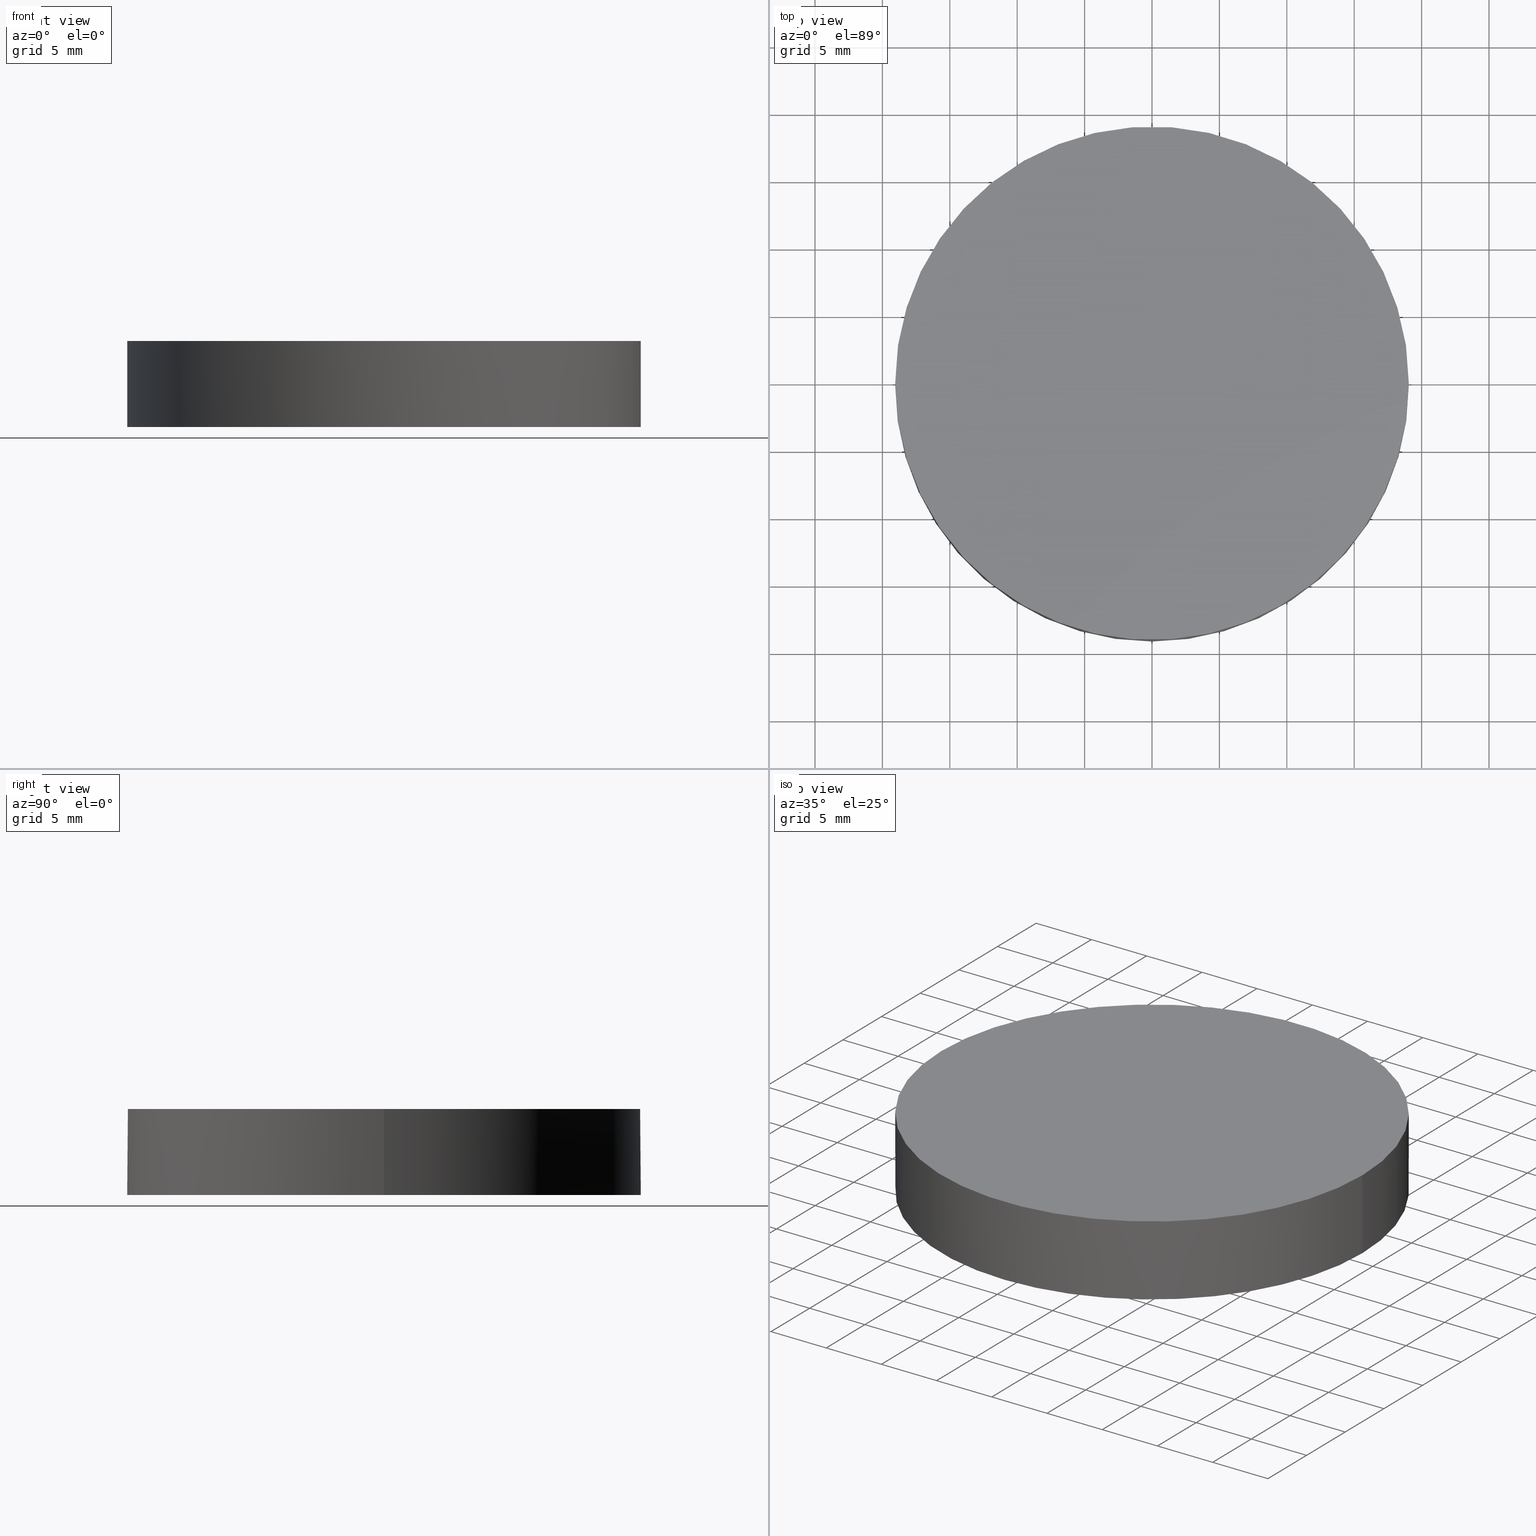
[diagram: canonical four-view strip — front | top / right | iso, engineering-drawing reading convention]
A machine part, canonical four-view strip (front | top / right | iso — engineering-drawing reading convention). The complete STEP part file that produces these views, byte-faithful:
ISO-10303-21;
HEADER;
FILE_DESCRIPTION (( 'STEP AP203' ),
    '1' );
FILE_NAME ('112-1411E UVFS pl-cv 38.1 F-100.STEP',
    '2019-01-17T08:30:07',
    ( '' ),
    ( '' ),
    'SwSTEP 2.0',
    'SolidWorks 2017',
    '' );
FILE_SCHEMA (( 'CONFIG_CONTROL_DESIGN' ));
ENDSEC;

DATA;
#1 = CALENDAR_DATE ( 2019, 17, 1 ) ;
#2 = ORIENTED_EDGE ( 'NONE', *, *, #103, .T. ) ;
#3 = CARTESIAN_POINT ( 'NONE',  ( -4.811603628528664400E-015, -8.881784197001250400E-016, 2.399999999999999500 ) ) ;
#4 = DIRECTION ( 'NONE',  ( 0.0000000000000000000, 1.000000000000000000, 2.914889268602070600E-016 ) ) ;
#5 = CC_DESIGN_DATE_AND_TIME_ASSIGNMENT ( #128, #79, ( #158 ) ) ;
#6 = FACE_OUTER_BOUND ( 'NONE', #187, .T. ) ;
#7 = CARTESIAN_POINT ( 'NONE',  ( 6.819685373449118500, 6.810067751749127900, 1.439395188424492000 ) ) ;
#8 = AXIS2_PLACEMENT_3D ( 'NONE', #195, #93, #60 ) ;
#9 = CARTESIAN_POINT ( 'NONE',  ( -4.662936703425659800E-015, -8.881784197001250400E-016, -3.977333338426360900 ) ) ;
#10 = CARTESIAN_POINT ( 'NONE',  ( 13.49369626036719300, -6.810067751749140400, 0.03736549040280141100 ) ) ;
#11 = DIRECTION ( 'NONE',  ( -2.331176954593499900E-017, -1.086877198725570000E-033, 1.000000000000000000 ) ) ;
#12 = CC_DESIGN_PERSON_AND_ORGANIZATION_ASSIGNMENT ( #67, #177, ( #158 ) ) ;
#13 = COORDINATED_UNIVERSAL_TIME_OFFSET ( 2, 0, .AHEAD. ) ;
#14 = EDGE_LOOP ( 'NONE', ( #57, #190, #159 ) ) ;
#15 = CC_DESIGN_PERSON_AND_ORGANIZATION_ASSIGNMENT ( #227, #82, ( #71 ) ) ;
#16 = AXIS2_PLACEMENT_3D ( 'NONE', #105, #144, #52 ) ;
#17 = APPROVAL ( #136, 'UNSPECIFIED' ) ;
#18 = ADVANCED_FACE ( 'NONE', ( #145 ), #50, .T. ) ;
#19 = CC_DESIGN_APPROVAL ( #98, ( #158 ) ) ;
#20 = DATE_AND_TIME ( #118, #169 ) ;
#21 = PLANE ( 'NONE',  #232 ) ;
#22 = CARTESIAN_POINT ( 'NONE',  ( 13.49369626036719300, 6.810067751749127900, 0.03736549040280401400 ) ) ;
#23 =( BOUNDED_SURFACE ( )  B_SPLINE_SURFACE ( 3, 3, ( 
 ( #91, #132, #189, #61 ),
 ( #72, #7, #22, #151 ),
 ( #167, #208, #10, #194 ),
 ( #46, #77, #62, #228 ) ),
 .UNSPECIFIED., .F., .F., .F. ) 
 B_SPLINE_SURFACE_WITH_KNOTS ( ( 4, 4 ),
 ( 4, 4 ),
 ( 0.0000000000000000000, 1.000000000000000000 ),
 ( 0.0000000000000000000, 1.000000000000000000 ),
 .UNSPECIFIED. ) 
 GEOMETRIC_REPRESENTATION_ITEM ( )  RATIONAL_B_SPLINE_SURFACE ( (
 ( 1.000000000000000000, 0.9857594127828645000, 0.9857594127828645000, 1.000000000000000000),
 ( 0.9429815934316968500, 0.9295529818062793200, 0.9295529818062793200, 0.9429815934316968500),
 ( 0.9429815934316968500, 0.9295529818062793200, 0.9295529818062793200, 0.9429815934316968500),
 ( 1.000000000000000000, 0.9857594127828645000, 0.9857594127828645000, 1.000000000000000000) ) ) 
 REPRESENTATION_ITEM ( '' )  SURFACE ( )  );
#24 = APPROVAL_PERSON_ORGANIZATION ( #155, #17, #214 ) ;
#25 = PRODUCT_RELATED_PRODUCT_CATEGORY ( 'detail', '', ( #96 ) ) ;
#26 = APPLICATION_PROTOCOL_DEFINITION ( 'international standard', 'config_control_design', 1994, #157 ) ;
#27 =( NAMED_UNIT ( * ) PLANE_ANGLE_UNIT ( ) SI_UNIT ( $, .RADIAN. ) );
#28 = VERTEX_POINT ( 'NONE', #224 ) ;
#29 = PERSON_AND_ORGANIZATION ( #123, #204 ) ;
#30 = CC_DESIGN_APPROVAL ( #17, ( #36 ) ) ;
#31 = ORIENTED_EDGE ( 'NONE', *, *, #119, .T. ) ;
#32 = EDGE_CURVE ( 'NONE', #137, #28, #182, .T. ) ;
#33 = AXIS2_PLACEMENT_3D ( 'NONE', #3, #222, #122 ) ;
#34 = APPROVAL_PERSON_ORGANIZATION ( #29, #111, #198 ) ;
#35 = DATE_AND_TIME ( #1, #125 ) ;
#36 = SECURITY_CLASSIFICATION ( '', '', #179 ) ;
#37 = CARTESIAN_POINT ( 'NONE',  ( -3.469446951953614200E-015, 19.26530561976662900, -4.071969505075364800 ) ) ;
#38 = CARTESIAN_POINT ( 'NONE',  ( -17.51919799288436900, -19.26530561976664700, -7.752280533589186900 ) ) ;
#39 = ORIENTED_EDGE ( 'NONE', *, *, #55, .T. ) ;
#40 = DIRECTION ( 'NONE',  ( -2.331176954593499900E-017, -1.086877198725570000E-033, 1.000000000000000000 ) ) ;
#41 = DIRECTION ( 'NONE',  ( 1.000000000000000000, 0.0000000000000000000, 4.553079989440438700E-017 ) ) ;
#42 = VERTEX_POINT ( 'NONE', #56 ) ;
#43 = DIRECTION ( 'NONE',  ( -2.331176954593499900E-017, -1.086877198725570000E-033, 1.000000000000000000 ) ) ;
#44 = DIRECTION ( 'NONE',  ( 1.000000000000000000, 0.0000000000000000000, 4.553079989440438700E-017 ) ) ;
#45 = ADVANCED_BREP_SHAPE_REPRESENTATION ( '112-1411E UVFS pl-cv 38.1 F-100', ( #171, #218 ), #153 ) ;
#46 = CARTESIAN_POINT ( 'NONE',  ( 6.322962827274209500E-015, -19.26530561976665000, -4.071969505075371900 ) ) ;
#47 =( LENGTH_UNIT ( ) NAMED_UNIT ( * ) SI_UNIT ( .MILLI., .METRE. ) );
#48 = APPROVAL_STATUS ( 'not_yet_approved' ) ;
#49 = MECHANICAL_CONTEXT ( 'NONE', #157, 'mechanical' ) ;
#50 = CYLINDRICAL_SURFACE ( 'NONE', #16, 19.05000000000000100 ) ;
#51 = AXIS2_PLACEMENT_3D ( 'NONE', #188, #148, #44 ) ;
#52 = DIRECTION ( 'NONE',  ( 1.000000000000000000, 0.0000000000000000000, 4.553079989440438700E-017 ) ) ;
#53 = APPROVAL_PERSON_ORGANIZATION ( #97, #98, #115 ) ;
#54 = CARTESIAN_POINT ( 'NONE',  ( 6.352151363294733000E-015, -19.05000000000000400, -3.977333338426361800 ) ) ;
#55 = EDGE_CURVE ( 'NONE', #180, #127, #140, .T. ) ;
#56 = CARTESIAN_POINT ( 'NONE',  ( 6.352151363294729900E-015, 19.04999999999999000, -3.977333338426361800 ) ) ;
#57 = ORIENTED_EDGE ( 'NONE', *, *, #89, .F. ) ;
#58 = COORDINATED_UNIVERSAL_TIME_OFFSET ( 2, 0, .AHEAD. ) ;
#59 = CARTESIAN_POINT ( 'NONE',  ( -4.662936703425659800E-015, -8.881784197001250400E-016, -3.977333338426360900 ) ) ;
#60 = DIRECTION ( 'NONE',  ( 1.000000000000000000, 0.0000000000000000000, 2.276539994720219300E-017 ) ) ;
#61 = CARTESIAN_POINT ( 'NONE',  ( 17.51919799288433300, 19.26530561976663600, -7.752280533589177100 ) ) ;
#62 = CARTESIAN_POINT ( 'NONE',  ( 11.97749650156262800, -19.26530561976665700, -5.316462154021712300 ) ) ;
#63 = PERSON_AND_ORGANIZATION_ROLE ( 'creator' ) ;
#64 = ORIENTED_EDGE ( 'NONE', *, *, #235, .T. ) ;
#65 = AXIS2_PLACEMENT_3D ( 'NONE', #210, #95, #134 ) ;
#66 = EDGE_CURVE ( 'NONE', #28, #127, #230, .T. ) ;
#67 = PERSON_AND_ORGANIZATION ( #123, #204 ) ;
#68 = DIRECTION ( 'NONE',  ( -2.331176954593499900E-017, -1.086877198725570000E-033, 1.000000000000000000 ) ) ;
#69 = CARTESIAN_POINT ( 'NONE',  ( 0.0000000000000000000, 6.810067751749127000, 1.439395188424495800 ) ) ;
#70 = CARTESIAN_POINT ( 'NONE',  ( 0.0000000000000000000, 0.0000000000000000000, 0.0000000000000000000 ) ) ;
#71 = PRODUCT_DEFINITION_FORMATION_WITH_SPECIFIED_SOURCE ( 'ANY', '', #96, .NOT_KNOWN. ) ;
#72 = CARTESIAN_POINT ( 'NONE',  ( 8.022827398871876000E-015, 6.810067751749127000, 1.439395188424494000 ) ) ;
#73 = UNCERTAINTY_MEASURE_WITH_UNIT (LENGTH_MEASURE( 1.000000000000000100E-005 ), #47, 'distance_accuracy_value', 'NONE');
#74 = ORIENTED_EDGE ( 'NONE', *, *, #32, .T. ) ;
#75 = CALENDAR_DATE ( 2019, 17, 1 ) ;
#76 = CARTESIAN_POINT ( 'NONE',  ( 0.0000000000000000000, -19.26530561976665000, -4.071969505075371900 ) ) ;
#77 = CARTESIAN_POINT ( 'NONE',  ( 6.053401242042030900, -19.26530561976665700, -4.071969505075373700 ) ) ;
#78 = CYLINDRICAL_SURFACE ( 'NONE', #51, 19.05000000000000100 ) ;
#79 = DATE_TIME_ROLE ( 'creation_date' ) ;
#80 = VERTEX_POINT ( 'NONE', #54 ) ;
#81 = PERSON_AND_ORGANIZATION ( #123, #204 ) ;
#82 = PERSON_AND_ORGANIZATION_ROLE ( 'design_supplier' ) ;
#83 = SHAPE_DEFINITION_REPRESENTATION ( #92, #45 ) ;
#84 = ORIENTED_EDGE ( 'NONE', *, *, #66, .T. ) ;
#85 = CARTESIAN_POINT ( 'NONE',  ( -17.51919799288436500, 19.26530561976663200, -7.752280533589179800 ) ) ;
#86 = CARTESIAN_POINT ( 'NONE',  ( -11.97749650156265000, -19.26530561976665400, -5.316462154021713200 ) ) ;
#87 = DIRECTION ( 'NONE',  ( 1.000000000000000000, 9.412420553253650200E-032, -3.084289765114799800E-016 ) ) ;
#88 = CARTESIAN_POINT ( 'NONE',  ( -11.97749650156264800, 19.26530561976663900, -5.316462154021707000 ) ) ;
#89 = EDGE_CURVE ( 'NONE', #42, #80, #161, .T. ) ;
#90 = VECTOR ( 'NONE', #68, 1000.000000000000000 ) ;
#91 = CARTESIAN_POINT ( 'NONE',  ( 6.322962827274204700E-015, 19.26530561976663600, -4.071969505075371900 ) ) ;
#92 = PRODUCT_DEFINITION_SHAPE ( 'NONE', 'NONE',  #158 ) ;
#93 = DIRECTION ( 'NONE',  ( 2.331176954593499900E-017, 1.086877198725570000E-033, -1.000000000000000000 ) ) ;
#94 = DIRECTION ( 'NONE',  ( 0.0000000000000000000, 0.0000000000000000000, 1.000000000000000000 ) ) ;
#95 = DIRECTION ( 'NONE',  ( -2.331176954593499900E-017, -1.086877198725570000E-033, 1.000000000000000000 ) ) ;
#96 = PRODUCT ( '112-1411E UVFS pl-cv 38.1 F-100', '112-1411E UVFS pl-cv 38.1 F-100', '', ( #49 ) ) ;
#97 = PERSON_AND_ORGANIZATION ( #123, #204 ) ;
#98 = APPROVAL ( #48, 'UNSPECIFIED' ) ;
#99 = CC_DESIGN_PERSON_AND_ORGANIZATION_ASSIGNMENT ( #121, #116, ( #36 ) ) ;
#100 = ORIENTED_EDGE ( 'NONE', *, *, #66, .F. ) ;
#101 = ADVANCED_FACE ( 'NONE', ( #6 ), #133, .F. ) ;
#102 = CARTESIAN_POINT ( 'NONE',  ( -6.819685373449125600, -6.810067751749144800, 1.439395188424491100 ) ) ;
#103 = EDGE_CURVE ( 'NONE', #127, #28, #215, .T. ) ;
#104 = ADVANCED_FACE ( 'NONE', ( #225 ), #78, .T. ) ;
#105 = CARTESIAN_POINT ( 'NONE',  ( -4.662936703425659800E-015, -8.881784197001250400E-016, -3.977333338426360500 ) ) ;
#106 = CARTESIAN_POINT ( 'NONE',  ( -19.73690715838445100, -6.810067751749142100, -2.706796727053509200 ) ) ;
#107 = ORIENTED_EDGE ( 'NONE', *, *, #211, .T. ) ;
#108 = ADVANCED_FACE ( 'NONE', ( #117 ), #23, .F. ) ;
#109 = CLOSED_SHELL ( 'NONE', ( #101, #18, #108, #104, #165 ) ) ;
#110 = CALENDAR_DATE ( 2019, 17, 1 ) ;
#111 = APPROVAL ( #173, 'UNSPECIFIED' ) ;
#112 = ORIENTED_EDGE ( 'NONE', *, *, #219, .T. ) ;
#113 = DATE_AND_TIME ( #110, #191 ) ;
#114 = AXIS2_PLACEMENT_3D ( 'NONE', #142, #87, #4 ) ;
#115 = APPROVAL_ROLE ( '' ) ;
#116 = PERSON_AND_ORGANIZATION_ROLE ( 'classification_officer' ) ;
#117 = FACE_OUTER_BOUND ( 'NONE', #14, .T. ) ;
#118 = CALENDAR_DATE ( 2019, 17, 1 ) ;
#119 = EDGE_CURVE ( 'NONE', #42, #180, #135, .T. ) ;
#120 = CIRCLE ( 'NONE', #65, 19.05000000000000100 ) ;
#121 = PERSON_AND_ORGANIZATION ( #123, #204 ) ;
#122 = DIRECTION ( 'NONE',  ( 1.000000000000000000, 0.0000000000000000000, 2.276539994720219300E-017 ) ) ;
#123 = PERSON ( 'UNSPECIFIED', 'UNSPECIFIED', 'UNSPECIFIED', ('UNSPECIFIED'), ('UNSPECIFIED'), ('UNSPECIFIED') ) ;
#124 = CARTESIAN_POINT ( 'NONE',  ( 0.0000000000000000000, -6.810067751749143900, 1.439395188424490200 ) ) ;
#125 = LOCAL_TIME ( 10, 30, 7.000000000000000000, #58 ) ;
#126 = CARTESIAN_POINT ( 'NONE',  ( -6.819685373449126500, 6.810067751749126200, 1.439395188424497300 ) ) ;
#127 = VERTEX_POINT ( 'NONE', #130 ) ;
#128 = DATE_AND_TIME ( #75, #234 ) ;
#129 = CARTESIAN_POINT ( 'NONE',  ( -4.662936703425659800E-015, -8.881784197001250400E-016, -3.977333338426360900 ) ) ;
#130 = CARTESIAN_POINT ( 'NONE',  ( -19.05000000000000400, 1.444773732675583000E-015, 2.399999999999999000 ) ) ;
#131 = CC_DESIGN_PERSON_AND_ORGANIZATION_ASSIGNMENT ( #81, #63, ( #71 ) ) ;
#132 = CARTESIAN_POINT ( 'NONE',  ( 6.053401242042029100, 19.26530561976664300, -4.071969505075373700 ) ) ;
#133 =( BOUNDED_SURFACE ( )  B_SPLINE_SURFACE ( 3, 3, ( 
 ( #85, #88, #141, #37 ),
 ( #162, #205, #126, #69 ),
 ( #106, #206, #102, #124 ),
 ( #38, #86, #226, #76 ) ),
 .UNSPECIFIED., .F., .F., .F. ) 
 B_SPLINE_SURFACE_WITH_KNOTS ( ( 4, 4 ),
 ( 4, 4 ),
 ( 0.0000000000000000000, 1.000000000000000000 ),
 ( 0.0000000000000000000, 1.000000000000000000 ),
 .UNSPECIFIED. ) 
 GEOMETRIC_REPRESENTATION_ITEM ( )  RATIONAL_B_SPLINE_SURFACE ( (
 ( 1.000000000000000000, 0.9857594127828642700, 0.9857594127828642700, 1.000000000000000000),
 ( 0.9429815934316968500, 0.9295529818062791000, 0.9295529818062791000, 0.9429815934316968500),
 ( 0.9429815934316968500, 0.9295529818062791000, 0.9295529818062791000, 0.9429815934316968500),
 ( 1.000000000000000000, 0.9857594127828642700, 0.9857594127828642700, 1.000000000000000000) ) ) 
 REPRESENTATION_ITEM ( '' )  SURFACE ( )  );
#134 = DIRECTION ( 'NONE',  ( 1.000000000000000000, 0.0000000000000000000, 4.553079989440438700E-017 ) ) ;
#135 = CIRCLE ( 'NONE', #209, 19.05000000000000100 ) ;
#136 = APPROVAL_STATUS ( 'not_yet_approved' ) ;
#137 = VERTEX_POINT ( 'NONE', #172 ) ;
#138 = DIRECTION ( 'NONE',  ( 1.000000000000000000, 0.0000000000000000000, 0.0000000000000000000 ) ) ;
#139 = DATE_AND_TIME ( #196, #201 ) ;
#140 = LINE ( 'NONE', #143, #90 ) ;
#141 = CARTESIAN_POINT ( 'NONE',  ( -6.053401242042039800, 19.26530561976663600, -4.071969505075363900 ) ) ;
#142 = CARTESIAN_POINT ( 'NONE',  ( -7.105427357601000300E-015, -1.065814103640150000E-014, -47.60999999999999900 ) ) ;
#143 = CARTESIAN_POINT ( 'NONE',  ( -19.05000000000000400, 1.444773732675583000E-015, -3.977333338426360900 ) ) ;
#144 = DIRECTION ( 'NONE',  ( -2.331176954593499900E-017, -1.086877198725570000E-033, 1.000000000000000000 ) ) ;
#145 = FACE_OUTER_BOUND ( 'NONE', #233, .T. ) ;
#146 = DIRECTION ( 'NONE',  ( 1.000000000000000000, 0.0000000000000000000, 4.553079989440438700E-017 ) ) ;
#147 = AXIS2_PLACEMENT_3D ( 'NONE', #9, #11, #146 ) ;
#148 = DIRECTION ( 'NONE',  ( -2.331176954593499900E-017, -1.086877198725570000E-033, 1.000000000000000000 ) ) ;
#149 = CIRCLE ( 'NONE', #178, 19.05000000000000100 ) ;
#150 = PERSON_AND_ORGANIZATION ( #123, #204 ) ;
#151 = CARTESIAN_POINT ( 'NONE',  ( 19.73690715838441500, 6.810067751749127900, -2.706796727053494900 ) ) ;
#152 = CARTESIAN_POINT ( 'NONE',  ( 0.0000000000000000000, 39.06600000000000300, 2.399999999999999900 ) ) ;
#153 =( GEOMETRIC_REPRESENTATION_CONTEXT ( 3 ) GLOBAL_UNCERTAINTY_ASSIGNED_CONTEXT ( ( #73 ) ) GLOBAL_UNIT_ASSIGNED_CONTEXT ( ( #47, #27, #199 ) ) REPRESENTATION_CONTEXT ( 'NONE', 'WORKASPACE' ) );
#154 = ORIENTED_EDGE ( 'NONE', *, *, #32, .F. ) ;
#155 = PERSON_AND_ORGANIZATION ( #123, #204 ) ;
#156 = PERSON_AND_ORGANIZATION_ROLE ( 'design_owner' ) ;
#157 = APPLICATION_CONTEXT ( 'configuration controlled 3d designs of mechanical parts and assemblies' ) ;
#158 = PRODUCT_DEFINITION ( 'UNKNOWN', '', #71, #160 ) ;
#159 = ORIENTED_EDGE ( 'NONE', *, *, #211, .F. ) ;
#160 = DESIGN_CONTEXT ( 'detailed design', #176, 'design' ) ;
#161 = CIRCLE ( 'NONE', #114, 47.60999999999999200 ) ;
#162 = CARTESIAN_POINT ( 'NONE',  ( -19.73690715838445100, 6.810067751749127000, -2.706796727053502000 ) ) ;
#163 = EDGE_LOOP ( 'NONE', ( #100, #220 ) ) ;
#164 = DIRECTION ( 'NONE',  ( -2.331176954593499900E-017, -1.086877198725570000E-033, 1.000000000000000000 ) ) ;
#165 = ADVANCED_FACE ( 'NONE', ( #174 ), #21, .T. ) ;
#166 = DIRECTION ( 'NONE',  ( 0.0000000000000000000, 0.0000000000000000000, 1.000000000000000000 ) ) ;
#167 = CARTESIAN_POINT ( 'NONE',  ( 8.022827398871877600E-015, -6.810067751749141300, 1.439395188424491500 ) ) ;
#168 = ORIENTED_EDGE ( 'NONE', *, *, #219, .F. ) ;
#169 = LOCAL_TIME ( 10, 30, 7.000000000000000000, #221 ) ;
#170 = APPROVAL_DATE_TIME ( #35, #17 ) ;
#171 = MANIFOLD_SOLID_BREP ( 'Imported1', #109 ) ;
#172 = CARTESIAN_POINT ( 'NONE',  ( 19.04999999999999700, -8.881784197001250400E-016, -3.977333338426360500 ) ) ;
#173 = APPROVAL_STATUS ( 'not_yet_approved' ) ;
#174 = FACE_OUTER_BOUND ( 'NONE', #163, .T. ) ;
#175 = APPLICATION_PROTOCOL_DEFINITION ( 'international standard', 'config_control_design', 1994, #176 ) ;
#176 = APPLICATION_CONTEXT ( 'configuration controlled 3d designs of mechanical parts and assemblies' ) ;
#177 = PERSON_AND_ORGANIZATION_ROLE ( 'creator' ) ;
#178 = AXIS2_PLACEMENT_3D ( 'NONE', #129, #43, #212 ) ;
#179 = SECURITY_CLASSIFICATION_LEVEL ( 'unclassified' ) ;
#180 = VERTEX_POINT ( 'NONE', #192 ) ;
#181 = EDGE_LOOP ( 'NONE', ( #213, #112, #107, #74, #84 ) ) ;
#182 = LINE ( 'NONE', #185, #197 ) ;
#183 = APPROVAL_DATE_TIME ( #20, #111 ) ;
#184 = COORDINATED_UNIVERSAL_TIME_OFFSET ( 2, 0, .AHEAD. ) ;
#185 = CARTESIAN_POINT ( 'NONE',  ( 19.04999999999999700, -8.881784197001250400E-016, -3.977333338426359600 ) ) ;
#186 = CC_DESIGN_APPROVAL ( #111, ( #71 ) ) ;
#187 = EDGE_LOOP ( 'NONE', ( #207, #202, #168 ) ) ;
#188 = CARTESIAN_POINT ( 'NONE',  ( -4.662936703425659800E-015, -8.881784197001250400E-016, -3.977333338426360500 ) ) ;
#189 = CARTESIAN_POINT ( 'NONE',  ( 11.97749650156262800, 19.26530561976664300, -5.316462154021712300 ) ) ;
#190 = ORIENTED_EDGE ( 'NONE', *, *, #235, .F. ) ;
#191 = LOCAL_TIME ( 10, 30, 7.000000000000000000, #184 ) ;
#192 = CARTESIAN_POINT ( 'NONE',  ( -19.05000000000000400, 1.444773732675583000E-015, -3.977333338426361800 ) ) ;
#193 = CC_DESIGN_SECURITY_CLASSIFICATION ( #36, ( #71 ) ) ;
#194 = CARTESIAN_POINT ( 'NONE',  ( 19.73690715838441500, -6.810067751749139500, -2.706796727053498100 ) ) ;
#195 = CARTESIAN_POINT ( 'NONE',  ( -4.811603628528664400E-015, -8.881784197001250400E-016, 2.399999999999999500 ) ) ;
#196 = CALENDAR_DATE ( 2019, 17, 1 ) ;
#197 = VECTOR ( 'NONE', #40, 1000.000000000000000 ) ;
#198 = APPROVAL_ROLE ( '' ) ;
#199 =( NAMED_UNIT ( * ) SI_UNIT ( $, .STERADIAN. ) SOLID_ANGLE_UNIT ( ) );
#200 = CC_DESIGN_PERSON_AND_ORGANIZATION_ASSIGNMENT ( #150, #156, ( #96 ) ) ;
#201 = LOCAL_TIME ( 10, 30, 7.000000000000000000, #13 ) ;
#202 = ORIENTED_EDGE ( 'NONE', *, *, #89, .T. ) ;
#203 = CIRCLE ( 'NONE', #147, 19.05000000000000100 ) ;
#204 = ORGANIZATION ( 'UNSPECIFIED', 'UNSPECIFIED', '' ) ;
#205 = CARTESIAN_POINT ( 'NONE',  ( -13.49369626036720700, 6.810067751749126200, 0.03736549040280573400 ) ) ;
#206 = CARTESIAN_POINT ( 'NONE',  ( -13.49369626036720900, -6.810067751749143900, 0.03736549040279880900 ) ) ;
#207 = ORIENTED_EDGE ( 'NONE', *, *, #119, .F. ) ;
#208 = CARTESIAN_POINT ( 'NONE',  ( 6.819685373449118500, -6.810067751749140400, 1.439395188424489800 ) ) ;
#209 = AXIS2_PLACEMENT_3D ( 'NONE', #59, #164, #41 ) ;
#210 = CARTESIAN_POINT ( 'NONE',  ( -4.662936703425659800E-015, -8.881784197001250400E-016, -3.977333338426360900 ) ) ;
#211 = EDGE_CURVE ( 'NONE', #80, #137, #120, .T. ) ;
#212 = DIRECTION ( 'NONE',  ( 1.000000000000000000, 0.0000000000000000000, 4.553079989440438700E-017 ) ) ;
#213 = ORIENTED_EDGE ( 'NONE', *, *, #55, .F. ) ;
#214 = APPROVAL_ROLE ( '' ) ;
#215 = CIRCLE ( 'NONE', #8, 19.05000000000000100 ) ;
#216 = COORDINATED_UNIVERSAL_TIME_OFFSET ( 2, 0, .AHEAD. ) ;
#217 = APPROVAL_DATE_TIME ( #139, #98 ) ;
#218 = AXIS2_PLACEMENT_3D ( 'NONE', #70, #166, #138 ) ;
#219 = EDGE_CURVE ( 'NONE', #180, #80, #203, .T. ) ;
#220 = ORIENTED_EDGE ( 'NONE', *, *, #103, .F. ) ;
#221 = COORDINATED_UNIVERSAL_TIME_OFFSET ( 2, 0, .AHEAD. ) ;
#222 = DIRECTION ( 'NONE',  ( 2.331176954593499900E-017, 1.086877198725570000E-033, -1.000000000000000000 ) ) ;
#223 = CC_DESIGN_DATE_AND_TIME_ASSIGNMENT ( #113, #231, ( #36 ) ) ;
#224 = CARTESIAN_POINT ( 'NONE',  ( 19.04999999999999700, -8.881784197001250400E-016, 2.399999999999999900 ) ) ;
#225 = FACE_OUTER_BOUND ( 'NONE', #181, .T. ) ;
#226 = CARTESIAN_POINT ( 'NONE',  ( -6.053401242042037100, -19.26530561976665700, -4.071969505075371000 ) ) ;
#227 = PERSON_AND_ORGANIZATION ( #123, #204 ) ;
#228 = CARTESIAN_POINT ( 'NONE',  ( 17.51919799288433700, -19.26530561976665000, -7.752280533589178000 ) ) ;
#229 = DIRECTION ( 'NONE',  ( 1.000000000000000000, 0.0000000000000000000, -0.0000000000000000000 ) ) ;
#230 = CIRCLE ( 'NONE', #33, 19.05000000000000100 ) ;
#231 = DATE_TIME_ROLE ( 'classification_date' ) ;
#232 = AXIS2_PLACEMENT_3D ( 'NONE', #152, #94, #229 ) ;
#233 = EDGE_LOOP ( 'NONE', ( #64, #31, #39, #2, #154 ) ) ;
#234 = LOCAL_TIME ( 10, 30, 7.000000000000000000, #216 ) ;
#235 = EDGE_CURVE ( 'NONE', #137, #42, #149, .T. ) ;
ENDSEC;
END-ISO-10303-21;
